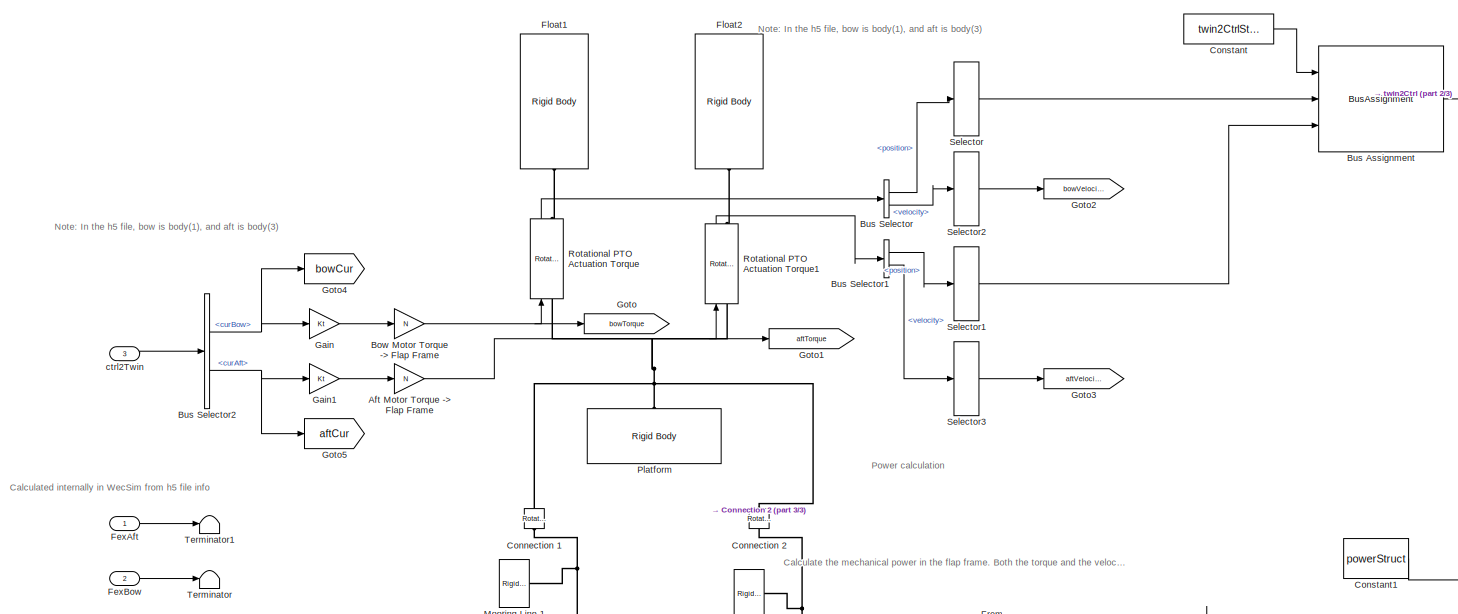
[diagram: root canvas - part 1/3, full width, middle band]
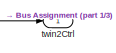
[diagram: root canvas - part 2/3, top right region]
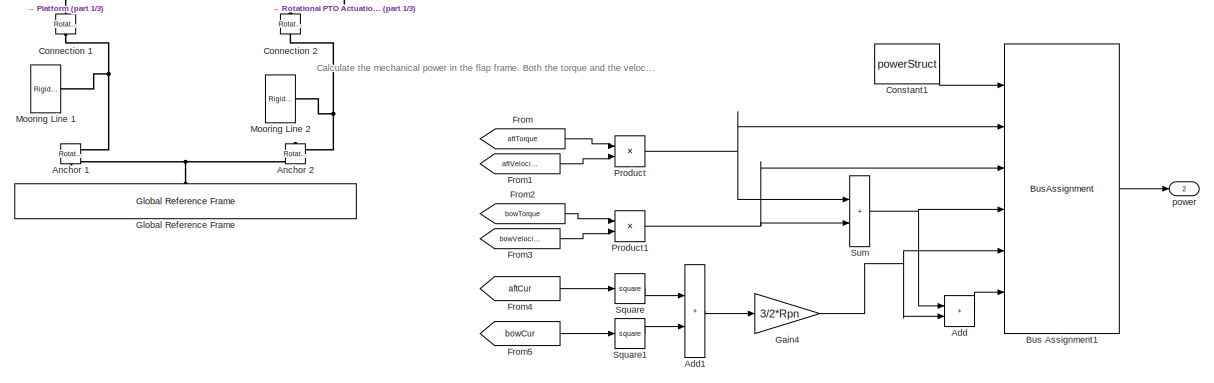
[diagram: root canvas - part 3/3, bottom center region]
MODEL slx_acc2105ce067
KIND model
CONFIG AbsTol = auto
CONFIG EnableMultiTasking = off
CONFIG FixedStep = Ts
CONFIG MaxStep = 0.005
CONFIG MinStep = auto
CONFIG RelTol = 1e-3
CONFIG SampleTimeConstraint = Unconstrained
CONFIG SolverName = ode4
CONFIG StartTime = 0
CONFIG StopTime = 300
BLOCK [Sum] Add
  IconShape = rectangular
  Ports = [2, 1]
BLOCK [Sum] Add1
  IconShape = rectangular
  Ports = [2, 1]
BLOCK [Gain] Aft Motor Torque -> Flap Frame
  Gain = N
BLOCK [Reference] Anchor 1  REF=WECSim_Lib_PTOs/Rotational PTO
  AttributesFormatString = %<pto>
  NameLocation = right
  Ports = [0, 0, 0, 0, 0, 1, 1]
  SourceBlock = WECSim_Lib_PTOs/Rotational PTO
  SourceProductName = WEC-Sim
  SourceType = PTO
BLOCK [Reference] Anchor 2  REF=WECSim_Lib_PTOs/Rotational PTO
  AttributesFormatString = %<pto>
  NameLocation = right
  Ports = [0, 0, 0, 0, 0, 1, 1]
  SourceBlock = WECSim_Lib_PTOs/Rotational PTO
  SourceProductName = WEC-Sim
  SourceType = PTO
BLOCK [Gain] Bow Motor Torque -> Flap Frame
  Gain = N
BLOCK [BusAssignment] Bus Assignment
  AssignedSignals = posFlapBow,posFlapAft
  Ports = [3, 1]
BLOCK [BusAssignment] Bus Assignment1
  AssignedSignals = powerMechAft,powerMechBow,powerMechTotal,powerI2R,powerNet
  Ports = [6, 1]
BLOCK [BusSelector] Bus Selector
  OutputSignals = position,velocity
  Ports = [1, 2]
BLOCK [BusSelector] Bus Selector1
  OutputSignals = position,velocity
  Ports = [1, 2]
BLOCK [BusSelector] Bus Selector2
  OutputSignals = curBow,curAft
  Ports = [1, 2]
BLOCK [Reference] Connection 1  REF=WECSim_Lib_PTOs/Rotational PTO
  AttributesFormatString = %<pto>
  NameLocation = right
  Ports = [0, 0, 0, 0, 0, 1, 1]
  SourceBlock = WECSim_Lib_PTOs/Rotational PTO
  SourceProductName = WEC-Sim
  SourceType = PTO
BLOCK [Reference] Connection 2  REF=WECSim_Lib_PTOs/Rotational PTO
  AttributesFormatString = %<pto>
  NameLocation = right
  Ports = [0, 0, 0, 0, 0, 1, 1]
  SourceBlock = WECSim_Lib_PTOs/Rotational PTO
  SourceProductName = WEC-Sim
  SourceType = PTO
BLOCK [Constant] Constant
  OutDataTypeStr = Bus: twin2CtrlBus
  Value = twin2CtrlStruct
BLOCK [Constant] Constant1
  OutDataTypeStr = Bus: powerBus
  Value = powerStruct
BLOCK [Inport] FexAft
BLOCK [Inport] FexBow
  Port = 2
BLOCK [Reference] Float1  REF=WECSim_Lib_Body_Elements/Rigid Body
  AttributesFormatString = %<body>
  NameLocation = left
  Ports = [0, 0, 0, 0, 0, 0, 1]
  SourceBlock = WECSim_Lib_Body_Elements/Rigid Body
  SourceType = Rigid Body
BLOCK [Reference] Float2  REF=WECSim_Lib_Body_Elements/Rigid Body
  AttributesFormatString = %<body>
  NameLocation = left
  Ports = [0, 0, 0, 0, 0, 0, 1]
  SourceBlock = WECSim_Lib_Body_Elements/Rigid Body
  SourceType = Rigid Body
BLOCK [From] From
  GotoTag = aftTorque
BLOCK [From] From1
  GotoTag = aftVelocity
BLOCK [From] From2
  GotoTag = bowTorque
BLOCK [From] From3
  GotoTag = bowVelocity
BLOCK [From] From4
  GotoTag = aftCur
BLOCK [From] From5
  GotoTag = bowCur
BLOCK [Gain] Gain
  Gain = Kt
BLOCK [Gain] Gain1
  Gain = Kt
BLOCK [Gain] Gain4
  Gain = 3/2*Rpn
BLOCK [Reference] Global Reference Frame  REF=WECSim_Lib_Frames/Global Reference Frame
  NameLocation = right
  Ports = [0, 0, 0, 0, 0, 0, 1]
  SourceBlock = WECSim_Lib_Frames/Global Reference Frame
  SourceProductName = WEC-Sim
  SourceType = Frames
BLOCK [Goto] Goto
  GotoTag = bowTorque
BLOCK [Goto] Goto1
  GotoTag = aftTorque
BLOCK [Goto] Goto2
  GotoTag = bowVelocity
BLOCK [Goto] Goto3
  GotoTag = aftVelocity
BLOCK [Goto] Goto4
  GotoTag = bowCur
BLOCK [Goto] Goto5
  GotoTag = aftCur
BLOCK [Reference] Mooring Line 1  REF=WECSim_Lib_Body_Elements/Rigid Body
  AttributesFormatString = %<body>
  Ports = [0, 0, 0, 0, 0, 0, 1]
  SourceBlock = WECSim_Lib_Body_Elements/Rigid Body
  SourceProductName = WEC-Sim
  SourceType = Rigid Body
BLOCK [Reference] Mooring Line 2  REF=WECSim_Lib_Body_Elements/Rigid Body
  AttributesFormatString = %<body>
  Ports = [0, 0, 0, 0, 0, 0, 1]
  SourceBlock = WECSim_Lib_Body_Elements/Rigid Body
  SourceProductName = WEC-Sim
  SourceType = Rigid Body
BLOCK [Reference] Platform  REF=WECSim_Lib_Body_Elements/Rigid Body
  AttributesFormatString = %<body>
  NameLocation = right
  Ports = [0, 0, 0, 0, 0, 0, 1]
  SourceBlock = WECSim_Lib_Body_Elements/Rigid Body
  SourceType = Rigid Body
BLOCK [Product] Product
  Ports = [2, 1]
BLOCK [Product] Product1
  Ports = [2, 1]
BLOCK [Reference] Rotational PTO Actuation Torque  REF=WECSim_Lib_PTOs/Rotational PTO
Actuation Torque
  AttributesFormatString = %<pto>
  NameLocation = right
  Ports = [1, 1, 0, 0, 0, 1, 1]
  SourceBlock = WECSim_Lib_PTOs/Rotational PTO\nActuation Torque
  SourceProductName = WEC-Sim
  SourceType = PTO
BLOCK [Reference] Rotational PTO Actuation Torque1  REF=WECSim_Lib_PTOs/Rotational PTO
Actuation Torque
  AttributesFormatString = %<pto>
  NameLocation = right
  Ports = [1, 1, 0, 0, 0, 1, 1]
  SourceBlock = WECSim_Lib_PTOs/Rotational PTO\nActuation Torque
  SourceProductName = WEC-Sim
  SourceType = PTO
BLOCK [Selector] Selector
  IndexOptions = Index vector (dialog)
  Indices = [5]
  InputPortWidth = 6
  OutputSizes = 1
  Ports = [1, 1]
BLOCK [Selector] Selector1
  IndexOptions = Index vector (dialog)
  Indices = [5]
  InputPortWidth = 6
  OutputSizes = 1
  Ports = [1, 1]
BLOCK [Selector] Selector2
  IndexOptions = Index vector (dialog)
  Indices = [5]
  InputPortWidth = 6
  OutputSizes = 1
  Ports = [1, 1]
BLOCK [Selector] Selector3
  IndexOptions = Index vector (dialog)
  Indices = [5]
  InputPortWidth = 6
  OutputSizes = 1
  Ports = [1, 1]
BLOCK [Math] Square
  Operator = square
  Ports = [1, 1]
BLOCK [Math] Square1
  Operator = square
  Ports = [1, 1]
BLOCK [Sum] Sum
  IconShape = rectangular
  Ports = [2, 1]
BLOCK [Terminator] Terminator
BLOCK [Terminator] Terminator1
BLOCK [Inport] ctrl2Twin
  OutDataTypeStr = Bus: ctrl2TwinBus
  Port = 3
BLOCK [Outport] power
  OutDataTypeStr = Bus: powerBus
  Port = 2
BLOCK [Outport] twin2Ctrl
  OutDataTypeStr = Bus: twin2CtrlBus
ANNOTATION (root): Note: In the h5 file, bow is body(1) , and aft is body(3)
ANNOTATION (root): Calculate the mechanical power in the flap frame. Both the torque and the velocity are in the flap frame
ANNOTATION (root): Calculated internally in WecSim from h5 file info
ANNOTATION (root): Note: In the h5 file, bow is body(1), and aft is body(3)
ANNOTATION (root): Power calculation
LINE Add1:1 -> Gain4:1
LINE Add:1 -> Bus Assignment1:6
NET Aft Motor Torque -> Flap Frame:1 -> Goto1:1, Rotational PTO Actuation Torque1:1
NET Bow Motor Torque -> Flap Frame:1 -> Goto:1, Rotational PTO Actuation Torque:1
LINE Bus Assignment1:1 -> power:1
LINE Bus Assignment:1 -> twin2Ctrl:1
LINE Bus Selector1:1 -> Selector1:1
LINE Bus Selector1:2 -> Selector3:1
NET Bus Selector2:1 -> Gain:1, Goto4:1
NET Bus Selector2:2 -> Gain1:1, Goto5:1
LINE Bus Selector:1 -> Selector:1
LINE Bus Selector:2 -> Selector2:1
LINE Constant1:1 -> Bus Assignment1:1
LINE Constant:1 -> Bus Assignment:1
LINE FexAft:1 -> Terminator1:1
LINE FexBow:1 -> Terminator:1
LINE From1:1 -> Product:2
LINE From2:1 -> Product1:1
LINE From3:1 -> Product1:2
LINE From4:1 -> Square:1
LINE From5:1 -> Square1:1
LINE From:1 -> Product:1
LINE Gain1:1 -> Aft Motor Torque -> Flap Frame:1
NET Gain4:1 -> Add:2, Bus Assignment1:5
LINE Gain:1 -> Bow Motor Torque -> Flap Frame:1
NET Product1:1 -> Bus Assignment1:3, Sum:2
NET Product:1 -> Bus Assignment1:2, Sum:1
LINE Rotational PTO Actuation Torque1:1 -> Bus Selector1:1
LINE Rotational PTO Actuation Torque:1 -> Bus Selector:1
LINE Selector1:1 -> Bus Assignment:3
LINE Selector2:1 -> Goto2:1
LINE Selector3:1 -> Goto3:1
LINE Selector:1 -> Bus Assignment:2
LINE Square1:1 -> Add1:2
LINE Square:1 -> Add1:1
NET Sum:1 -> Add:1, Bus Assignment1:4
LINE ctrl2Twin:1 -> Bus Selector2:1
PNET net1: Anchor 1:LConn1 -- Anchor 2:LConn1 -- Global Reference Frame:RConn1
PNET net2: Anchor 1:RConn1 -- Connection 1:LConn1 -- Mooring Line 1:RConn1
PNET net3: Anchor 2:RConn1 -- Connection 2:LConn1 -- Mooring Line 2:RConn1
PNET net4: Connection 1:RConn1 -- Connection 2:RConn1 -- Platform:RConn1 -- Rotational PTO Actuation Torque1:LConn1 -- Rotational PTO Actuation Torque:LConn1
PLINE Float1:RConn1 -- Rotational PTO Actuation Torque:RConn1
PLINE Float2:RConn1 -- Rotational PTO Actuation Torque1:RConn1
note: NET lines group one-source signal fan-out (src -> all destinations, sorted); 1:1 wires keep LINE; PNET lines group multi-terminal physical nets as a canonical sorted terminal list (undirected conserving connections); 2-terminal nets keep the pairwise PLINE form
